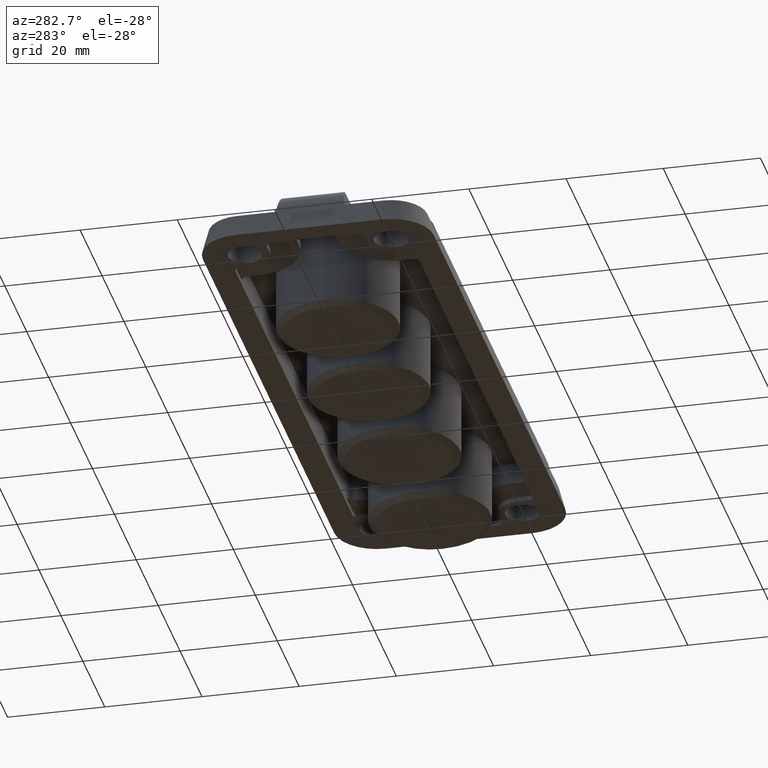
[diagram: clean part render]
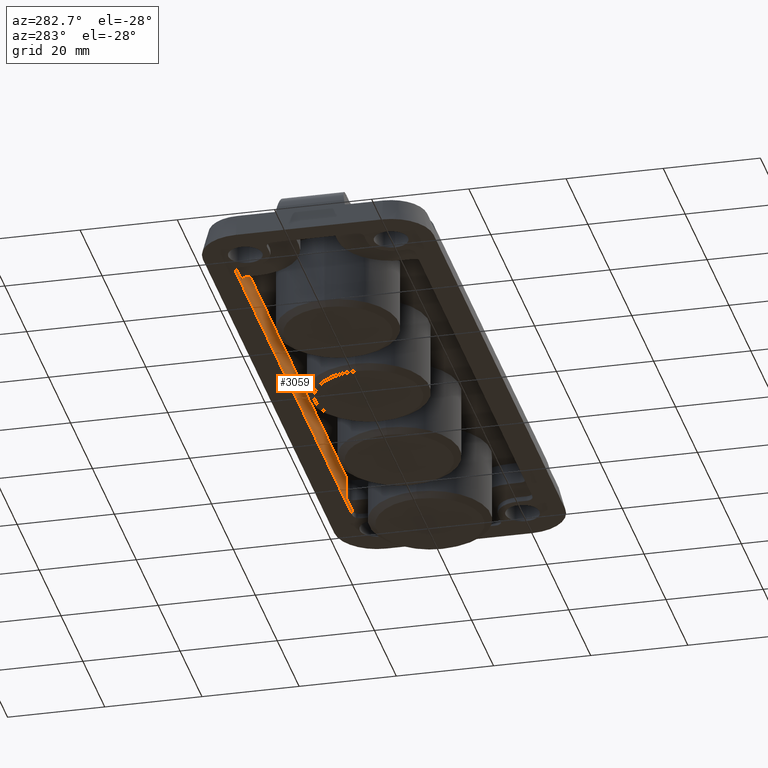
[diagram: same view with one face highlighted and labeled with its STEP entity id]
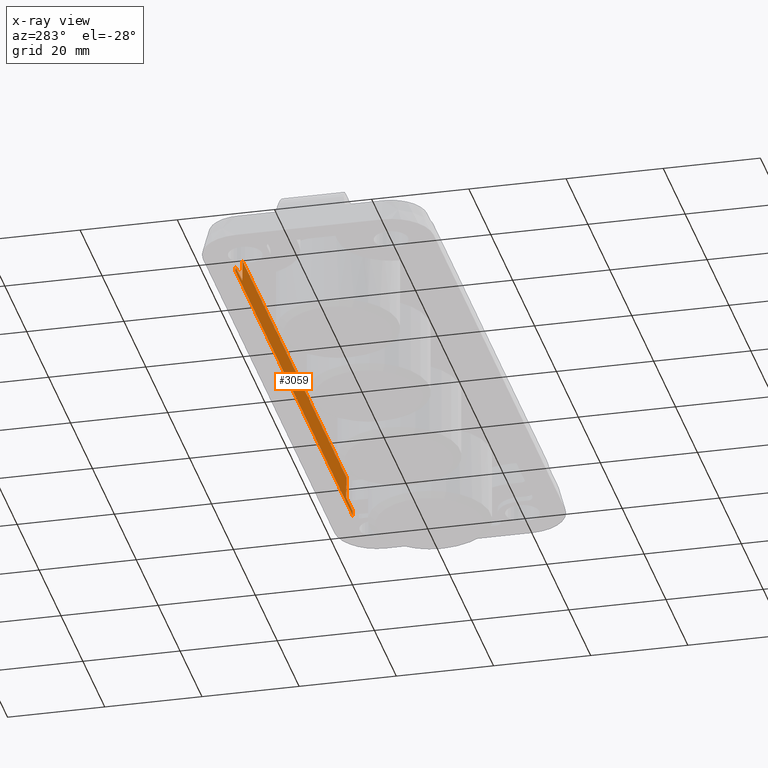
[diagram: x-ray of the same camera — body ghosted, the highlighted face saturated]
A machine part, auxiliary view. The second image highlights one B-rep face of the part: STEP entity #3059.
The next image is the same camera in x-ray: the body ghosted, the highlighted face saturated — about 0% of this face is hidden behind the body in this view.
In plain terms, the highlighted planar face has unit normal (0, 0.9998, 0.0175).
Its self-contained STEP definition (entity closure, byte-faithful):
#34 = VECTOR ( 'NONE', #2907, 1000.000000000000200 ) ;
#93 = EDGE_CURVE ( 'NONE', #952, #1448, #1549, .T. ) ;
#116 = EDGE_CURVE ( 'NONE', #1340, #2464, #862, .T. ) ;
#126 = DIRECTION ( 'NONE',  ( 1.000000000000000000, 0.0000000000000000000, 3.081487911019574600E-033 ) ) ;
#140 = VECTOR ( 'NONE', #2376, 1000.000000000000200 ) ;
#337 = DIRECTION ( 'NONE',  ( 3.081487911019576700E-033, -0.01745240643728356400, 0.9998476951563911600 ) ) ;
#397 = CARTESIAN_POINT ( 'NONE',  ( -47.50000000000004300, 18.48254493507177200, 1.000000000000000900 ) ) ;
#440 = DIRECTION ( 'NONE',  ( 8.073359775745202900E-017, 0.01745240643728356400, -0.9998476951563911600 ) ) ;
#573 = CARTESIAN_POINT ( 'NONE',  ( -53.50000000000005700, 18.48254493507182900, 1.000000000000000900 ) ) ;
#647 = VECTOR ( 'NONE', #3863, 1000.000000000000000 ) ;
#845 = CARTESIAN_POINT ( 'NONE',  ( -53.50000000000005700, 18.50000000000005700, 0.0000000000000000000 ) ) ;
#862 = LINE ( 'NONE', #1959, #34 ) ;
#902 = EDGE_LOOP ( 'NONE', ( #1877, #3303, #1104, #2806, #2728, #1341, #3562, #2949 ) ) ;
#952 = VERTEX_POINT ( 'NONE', #1246 ) ;
#1104 = ORIENTED_EDGE ( 'NONE', *, *, #3236, .F. ) ;
#1121 = CARTESIAN_POINT ( 'NONE',  ( -53.50000000000005700, 18.50000000000005700, 0.0000000000000000000 ) ) ;
#1157 = EDGE_CURVE ( 'NONE', #952, #2948, #3925, .T. ) ;
#1241 = VECTOR ( 'NONE', #2297, 1000.000000000000000 ) ;
#1246 = CARTESIAN_POINT ( 'NONE',  ( -47.50000000000004300, 18.40399714289475600, 5.500000000000005300 ) ) ;
#1280 = EDGE_CURVE ( 'NONE', #2625, #2177, #1301, .T. ) ;
#1301 = LINE ( 'NONE', #845, #140 ) ;
#1340 = VERTEX_POINT ( 'NONE', #1488 ) ;
#1341 = ORIENTED_EDGE ( 'NONE', *, *, #93, .T. ) ;
#1360 = LINE ( 'NONE', #3222, #2146 ) ;
#1371 = DIRECTION ( 'NONE',  ( -3.081487911019577400E-033, 0.01745240643728356400, -0.9998476951563911600 ) ) ;
#1448 = VERTEX_POINT ( 'NONE', #2801 ) ;
#1488 = CARTESIAN_POINT ( 'NONE',  ( 53.50000000000007100, 18.48254493507181500, 1.000000000000000900 ) ) ;
#1549 = LINE ( 'NONE', #397, #3763 ) ;
#1720 = CARTESIAN_POINT ( 'NONE',  ( 53.50000000000007100, 18.49999999999998900, 0.0000000000000000000 ) ) ;
#1877 = ORIENTED_EDGE ( 'NONE', *, *, #3317, .T. ) ;
#1886 = CARTESIAN_POINT ( 'NONE',  ( -53.50000000000005700, 18.50000000000000400, 0.0000000000000000000 ) ) ;
#1959 = CARTESIAN_POINT ( 'NONE',  ( 53.50000000000007100, 18.49999999999998900, 0.0000000000000000000 ) ) ;
#2018 = CARTESIAN_POINT ( 'NONE',  ( -47.50000000000004300, 18.40399714289475600, 5.500000000000005300 ) ) ;
#2073 = EDGE_CURVE ( 'NONE', #2625, #1448, #2689, .T. ) ;
#2093 = VECTOR ( 'NONE', #126, 1000.000000000000000 ) ;
#2146 = VECTOR ( 'NONE', #1371, 1000.000000000000200 ) ;
#2171 = VERTEX_POINT ( 'NONE', #3297 ) ;
#2177 = VERTEX_POINT ( 'NONE', #1121 ) ;
#2211 = DIRECTION ( 'NONE',  ( 9.621952956331906200E-050, 0.9998476951563912700, 0.01745240643728356700 ) ) ;
#2262 = FACE_OUTER_BOUND ( 'NONE', #902, .T. ) ;
#2297 = DIRECTION ( 'NONE',  ( 1.000000000000000000, 0.0000000000000000000, 3.081487911019574600E-033 ) ) ;
#2316 = LINE ( 'NONE', #2977, #2503 ) ;
#2376 = DIRECTION ( 'NONE',  ( -3.081487911019577400E-033, 0.01745240643728356400, -0.9998476951563911600 ) ) ;
#2464 = VERTEX_POINT ( 'NONE', #1720 ) ;
#2501 = PLANE ( 'NONE',  #3916 ) ;
#2503 = VECTOR ( 'NONE', #3692, 1000.000000000000000 ) ;
#2625 = VERTEX_POINT ( 'NONE', #573 ) ;
#2629 = CARTESIAN_POINT ( 'NONE',  ( 60.00000000000006400, 18.48254493507181500, 1.000000000000000900 ) ) ;
#2689 = LINE ( 'NONE', #3498, #1241 ) ;
#2728 = ORIENTED_EDGE ( 'NONE', *, *, #1157, .F. ) ;
#2801 = CARTESIAN_POINT ( 'NONE',  ( -47.50000000000004300, 18.48254493507177200, 1.000000000000000900 ) ) ;
#2806 = ORIENTED_EDGE ( 'NONE', *, *, #3928, .F. ) ;
#2907 = DIRECTION ( 'NONE',  ( -3.081487911019577400E-033, 0.01745240643728356400, -0.9998476951563911600 ) ) ;
#2948 = VERTEX_POINT ( 'NONE', #3197 ) ;
#2949 = ORIENTED_EDGE ( 'NONE', *, *, #1280, .T. ) ;
#2977 = CARTESIAN_POINT ( 'NONE',  ( -53.50000000000005700, 18.50000000000000400, 0.0000000000000000000 ) ) ;
#3059 = ADVANCED_FACE ( 'NONE', ( #2262 ), #2501, .F. ) ;
#3184 = LINE ( 'NONE', #2629, #647 ) ;
#3197 = CARTESIAN_POINT ( 'NONE',  ( 47.50000000000005700, 18.40399714289481300, 5.500000000000005300 ) ) ;
#3222 = CARTESIAN_POINT ( 'NONE',  ( 47.50000000000005700, 18.48254493507181500, 1.000000000000000900 ) ) ;
#3236 = EDGE_CURVE ( 'NONE', #2171, #1340, #3184, .T. ) ;
#3297 = CARTESIAN_POINT ( 'NONE',  ( 47.50000000000005700, 18.48254493507181500, 1.000000000000000900 ) ) ;
#3303 = ORIENTED_EDGE ( 'NONE', *, *, #116, .F. ) ;
#3317 = EDGE_CURVE ( 'NONE', #2177, #2464, #2316, .T. ) ;
#3498 = CARTESIAN_POINT ( 'NONE',  ( 60.00000000000006400, 18.48254493507181500, 1.000000000000000900 ) ) ;
#3562 = ORIENTED_EDGE ( 'NONE', *, *, #2073, .F. ) ;
#3692 = DIRECTION ( 'NONE',  ( 1.000000000000000000, -6.162975822039150600E-033, 3.081487911019575300E-033 ) ) ;
#3763 = VECTOR ( 'NONE', #440, 1000.000000000000200 ) ;
#3863 = DIRECTION ( 'NONE',  ( 1.000000000000000000, 0.0000000000000000000, 3.081487911019574600E-033 ) ) ;
#3916 = AXIS2_PLACEMENT_3D ( 'NONE', #1886, #2211, #337 ) ;
#3925 = LINE ( 'NONE', #2018, #2093 ) ;
#3928 = EDGE_CURVE ( 'NONE', #2948, #2171, #1360, .T. ) ;